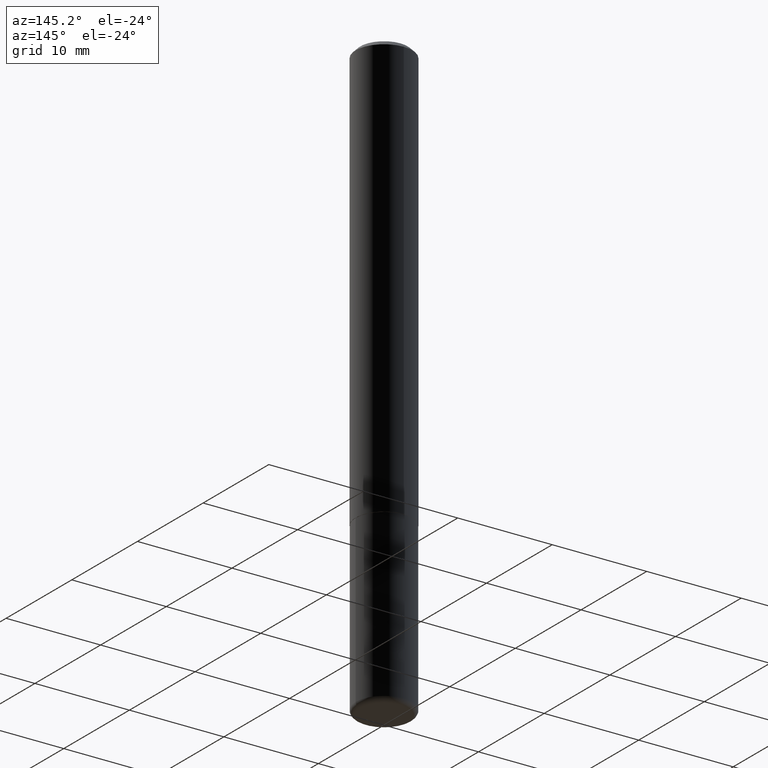
[diagram: clean part render]
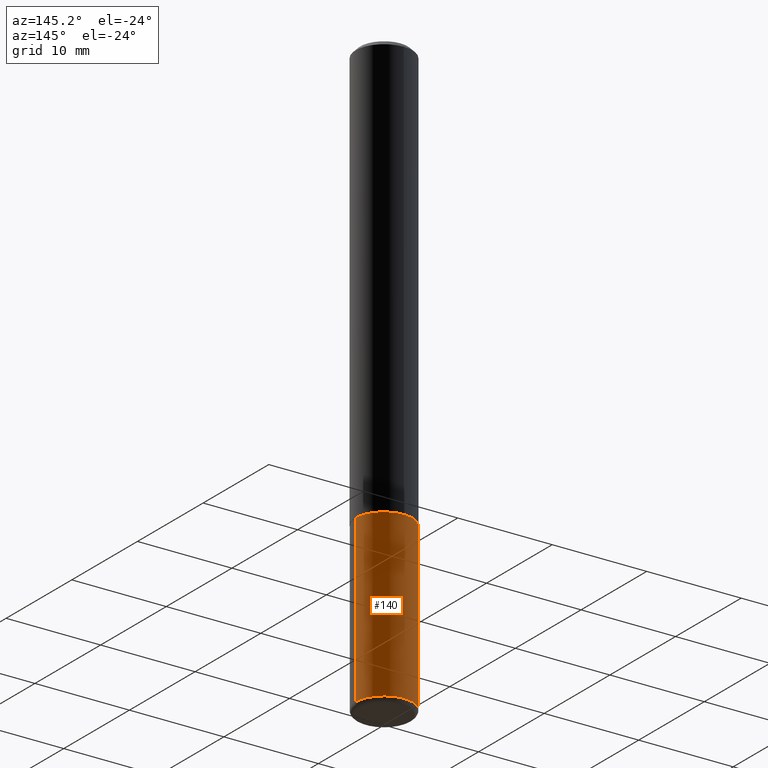
[diagram: same view with one face highlighted and labeled with its STEP entity id]
A machine part, auxiliary view. The second image highlights one B-rep face of the part: STEP entity #140.
In plain terms, the highlighted cylindrical surface (edge-blend (fillet) strip) has radius 2.9997 mm, axis along (-0, 0, 1).
Its self-contained STEP definition (entity closure, byte-faithful):
#6 = CARTESIAN_POINT ( 'NONE',  ( -0.1180999999999999966, 8.391509709326782957E-16, -5.809262341591043784E-30 ) ) ;
#22 = CARTESIAN_POINT ( 'NONE',  ( -0.1181000000000000105, -7.751988011424766742E-15, -2.460600000000000342 ) ) ;
#32 = CARTESIAN_POINT ( 'NONE',  ( 0.1180999999999999966, -8.246878922347480654E-16, 5.758764772215000440E-30 ) ) ;
#48 = VERTEX_POINT ( 'NONE', #22 ) ;
#57 = EDGE_CURVE ( 'NONE', #208, #189, #262, .T. ) ;
#59 = VECTOR ( 'NONE', #65, 39.37007874015748143 ) ;
#65 = DIRECTION ( 'NONE',  ( -2.445468806185136877E-29, 3.491481338843145188E-15, 1.000000000000000000 ) ) ;
#74 = CARTESIAN_POINT ( 'NONE',  ( 0.1181000000000000105, -9.415826874592192413E-15, -2.460600000000000342 ) ) ;
#80 = CARTESIAN_POINT ( 'NONE',  ( 0.1180999999999999966, -7.010196232129265043E-15, -1.771600000000000286 ) ) ;
#90 = CIRCLE ( 'NONE', #305, 0.1180999999999999966 ) ;
#92 = AXIS2_PLACEMENT_3D ( 'NONE', #405, #264, #111 ) ;
#104 = VERTEX_POINT ( 'NONE', #288 ) ;
#109 = DIRECTION ( 'NONE',  ( 1.000000000000000000, -6.982962677686273021E-15, 0.000000000000000000 ) ) ;
#111 = DIRECTION ( 'NONE',  ( 1.000000000000000000, -6.982962677686265133E-15, 0.000000000000000000 ) ) ;
#134 = EDGE_CURVE ( 'NONE', #48, #104, #388, .T. ) ;
#140 = ADVANCED_FACE ( 'NONE', ( #391 ), #418, .T. ) ;
#161 = DIRECTION ( 'NONE',  ( -2.445468806185136877E-29, 3.491481338843145188E-15, 1.000000000000000000 ) ) ;
#189 = VERTEX_POINT ( 'NONE', #80 ) ;
#193 = DIRECTION ( 'NONE',  ( 1.000000000000000000, -6.982962677686266711E-15, 4.876176775795936353E-29 ) ) ;
#205 = ORIENTED_EDGE ( 'NONE', *, *, #300, .T. ) ;
#208 = VERTEX_POINT ( 'NONE', #74 ) ;
#226 = CIRCLE ( 'NONE', #92, 0.1180999999999999966 ) ;
#245 = AXIS2_PLACEMENT_3D ( 'NONE', #361, #321, #193 ) ;
#262 = LINE ( 'NONE', #32, #59 ) ;
#264 = DIRECTION ( 'NONE',  ( -2.445468806185136597E-29, 3.491481338843145583E-15, 1.000000000000000000 ) ) ;
#288 = CARTESIAN_POINT ( 'NONE',  ( -0.1180999999999999966, -6.549172690193302663E-15, -1.771600000000000286 ) ) ;
#298 = EDGE_LOOP ( 'NONE', ( #205, #303, #369, #312 ) ) ;
#300 = EDGE_CURVE ( 'NONE', #208, #48, #90, .T. ) ;
#303 = ORIENTED_EDGE ( 'NONE', *, *, #134, .T. ) ;
#305 = AXIS2_PLACEMENT_3D ( 'NONE', #380, #337, #109 ) ;
#312 = ORIENTED_EDGE ( 'NONE', *, *, #57, .F. ) ;
#321 = DIRECTION ( 'NONE',  ( -2.445468806185136597E-29, 3.491481338843145583E-15, 1.000000000000000000 ) ) ;
#337 = DIRECTION ( 'NONE',  ( -2.445468806185136597E-29, 3.491481338843145583E-15, 1.000000000000000000 ) ) ;
#343 = VECTOR ( 'NONE', #161, 39.37007874015748143 ) ;
#361 = CARTESIAN_POINT ( 'NONE',  ( 0.000000000000000000, 0.000000000000000000, 0.000000000000000000 ) ) ;
#369 = ORIENTED_EDGE ( 'NONE', *, *, #374, .F. ) ;
#374 = EDGE_CURVE ( 'NONE', #189, #104, #226, .T. ) ;
#380 = CARTESIAN_POINT ( 'NONE',  ( 6.017320544499148018E-29, -8.591138982357444151E-15, -2.460600000000000342 ) ) ;
#388 = LINE ( 'NONE', #6, #343 ) ;
#391 = FACE_OUTER_BOUND ( 'NONE', #298, .T. ) ;
#405 = CARTESIAN_POINT ( 'NONE',  ( 4.332392537037588763E-29, -6.185508339894517569E-15, -1.771600000000000286 ) ) ;
#418 = CYLINDRICAL_SURFACE ( 'NONE', #245, 0.1180999999999999966 ) ;